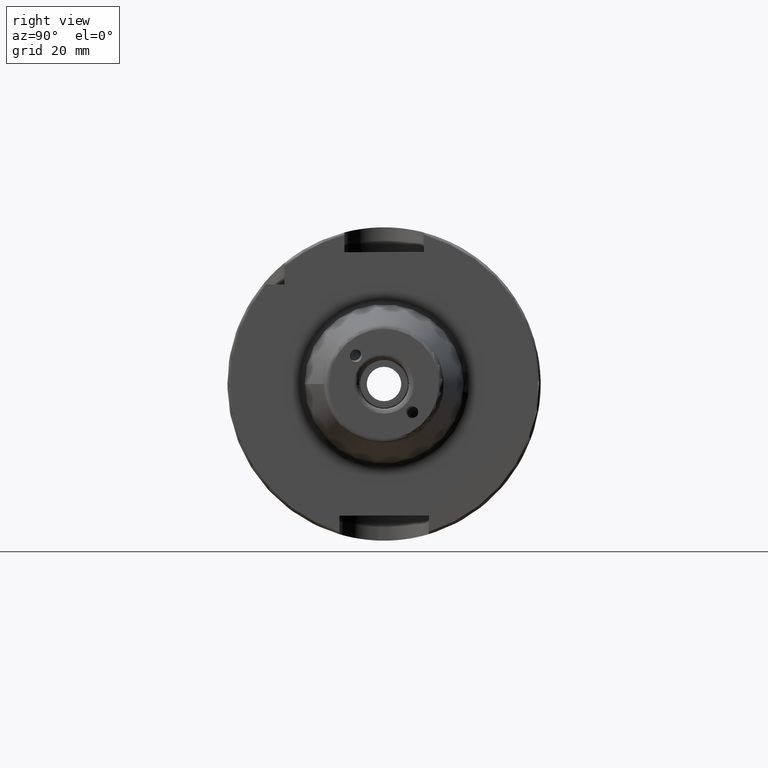
[diagram: clean part render]
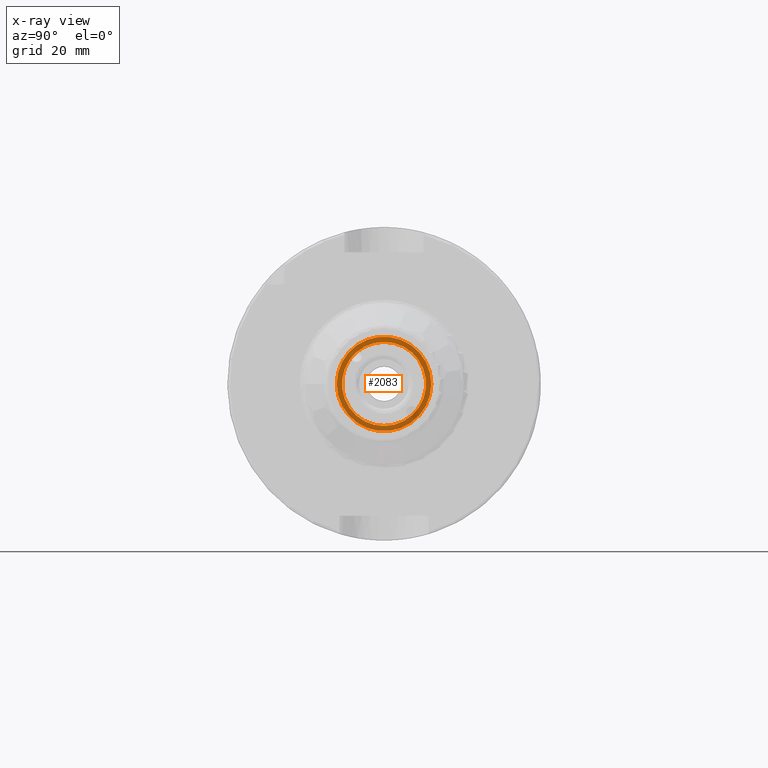
[diagram: x-ray — body ghosted, one internal face saturated and labeled with its STEP entity id]
A machine part, right view, then the same camera in x-ray: the body is ghosted and one INTERNAL B-rep face — a face not visible from any outside direction — is saturated and labeled: STEP entity #2083.
In plain terms, the highlighted planar face has unit normal (-1, 0, 0).
Its self-contained STEP definition (entity closure, byte-faithful):
#99=FACE_BOUND('',#450,.T.);
#141=PLANE('',#2344);
#320=FACE_OUTER_BOUND('',#449,.T.);
#449=EDGE_LOOP('',(#1907));
#450=EDGE_LOOP('',(#1908));
#785=CIRCLE('',#2335,8.458734);
#790=CIRCLE('',#2343,9.5);
#995=VERTEX_POINT('',#4394);
#999=VERTEX_POINT('',#4407);
#1300=EDGE_CURVE('',#995,#995,#785,.T.);
#1306=EDGE_CURVE('',#999,#999,#790,.T.);
#1907=ORIENTED_EDGE('',*,*,#1306,.F.);
#1908=ORIENTED_EDGE('',*,*,#1300,.T.);
#2083=ADVANCED_FACE('',(#320,#99),#141,.F.);
#2335=AXIS2_PLACEMENT_3D('',#4396,#2908,#2909);
#2343=AXIS2_PLACEMENT_3D('',#4409,#2925,#2926);
#2344=AXIS2_PLACEMENT_3D('',#4410,#2927,#2928);
#2908=DIRECTION('center_axis',(-1.,0.,0.));
#2909=DIRECTION('ref_axis',(0.,0.,1.));
#2925=DIRECTION('center_axis',(-1.,0.,0.));
#2926=DIRECTION('ref_axis',(0.,0.,1.));
#2927=DIRECTION('center_axis',(-1.,0.,0.));
#2928=DIRECTION('ref_axis',(0.,0.,1.));
#4394=CARTESIAN_POINT('',(17.,-1.03589615179389E-15,-8.458734));
#4396=CARTESIAN_POINT('Origin',(17.,0.,0.));
#4407=CARTESIAN_POINT('',(17.,-9.5,1.16341445918999E-15));
#4409=CARTESIAN_POINT('Origin',(17.,0.,0.));
#4410=CARTESIAN_POINT('Origin',(17.,7.5,0.));